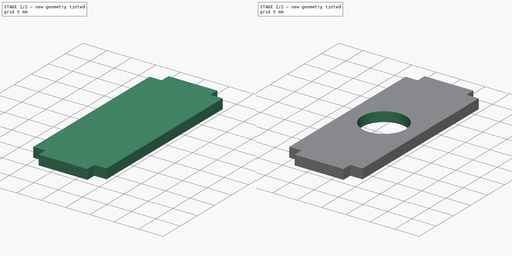
[diagram: build sequence overview — one tinted view per stage of 2, left to right]
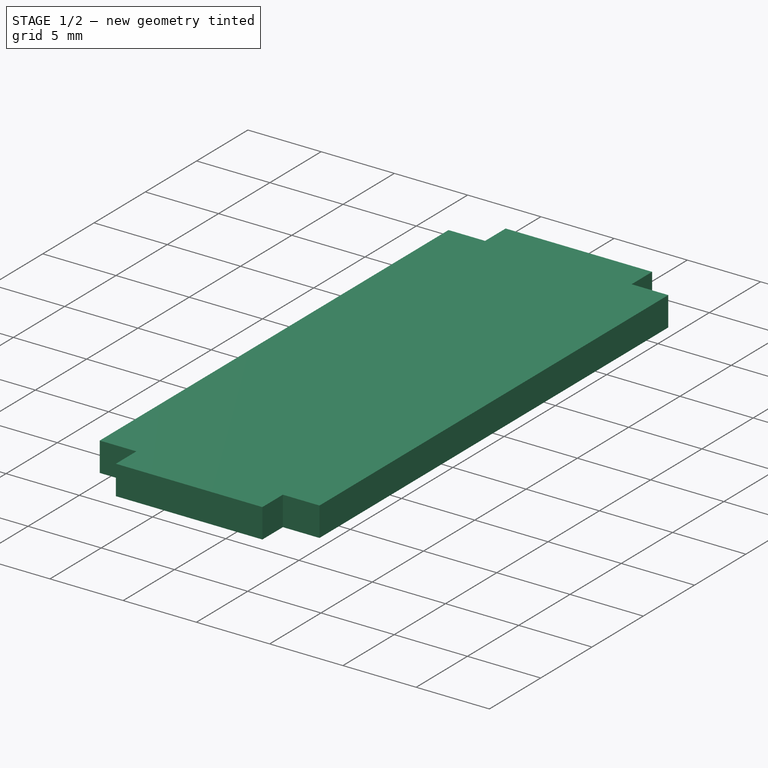
[diagram: stage 1 of 2 — iso view after this stage's code; geometry added in this stage tinted green]
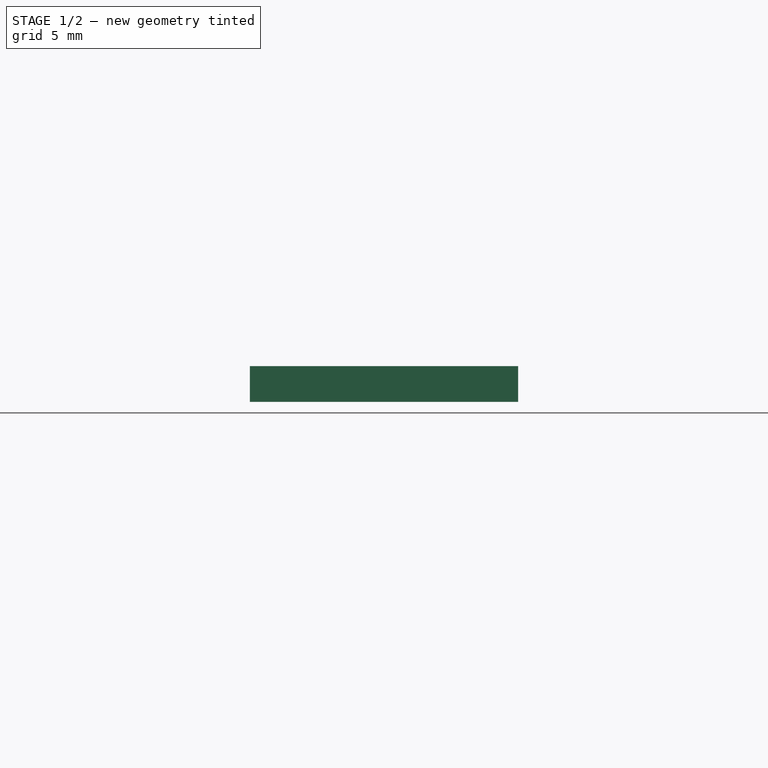
[diagram: stage 1 of 2 — front view after this stage's code; geometry added in this stage tinted green]
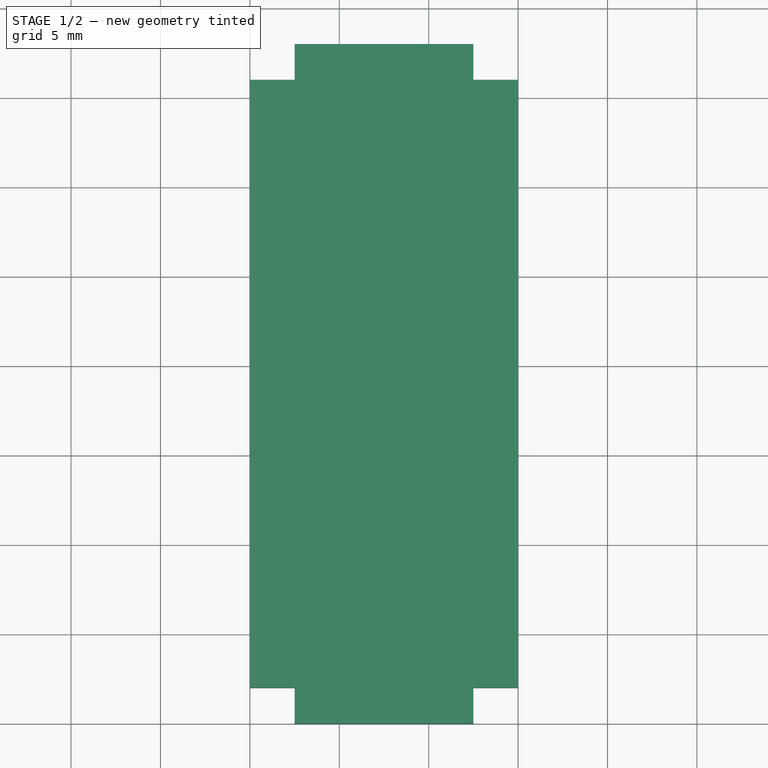
[diagram: stage 1 of 2 — top view after this stage's code; geometry added in this stage tinted green]
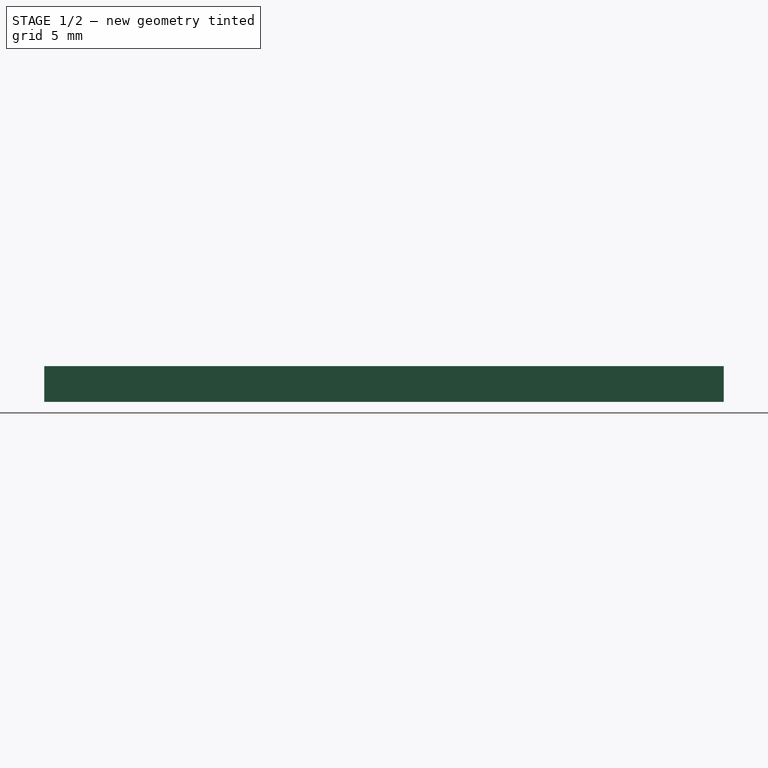
[diagram: stage 1 of 2 — right view after this stage's code; geometry added in this stage tinted green]
FCSTD DOCUMENT  (FreeCAD 0.18R16131 (Git))
Label: fem_renfort
License: All rights reserved
LicenseURL: http://en.wikipedia.org/wiki/All_rights_reserved
objects: Sketcher::SketchObject×2, PartDesign::Pad×1, PartDesign::Pocket×1, PartDesign::Body×1
note: 7 computed .brp shape members not serialized (recipe doc carries the construction recipe); baked Part::Feature solids carry a one-line shape summary decoded from their .brp

FEATURE [Sketcher::SketchObject] Sketch
  MapMode = 5
  Support = -> [XY_Plane]
  sketch-geometry (12):
    g0: LineSegment StartX=-7.357e-13 StartY=2 StartZ=0 EndX=7.357e-13 EndY=36 EndZ=0
    g1: LineSegment StartX=7.357e-13 StartY=36 StartZ=0 EndX=2.5 EndY=36 EndZ=0
    g2: LineSegment StartX=2.5 StartY=36 StartZ=0 EndX=2.5 EndY=38 EndZ=0
    g3: LineSegment StartX=2.5 StartY=38 StartZ=0 EndX=12.5 EndY=38 EndZ=0
    g4: LineSegment StartX=12.5 StartY=38 StartZ=0 EndX=12.5 EndY=36 EndZ=0
    g5: LineSegment StartX=12.5 StartY=36 StartZ=0 EndX=15 EndY=36 EndZ=0
    g6: LineSegment StartX=15 StartY=36 StartZ=0 EndX=15 EndY=2 EndZ=0
    g7: LineSegment StartX=15 StartY=2 StartZ=0 EndX=12.5 EndY=2 EndZ=0
    g8: LineSegment StartX=12.5 StartY=2 StartZ=0 EndX=12.5 EndY=0 EndZ=0
    g9: LineSegment StartX=12.5 StartY=0 StartZ=0 EndX=2.5 EndY=0 EndZ=0
    g10: LineSegment StartX=2.5 StartY=0 StartZ=0 EndX=2.5 EndY=2 EndZ=0
    g11: LineSegment StartX=2.5 StartY=2 StartZ=0 EndX=-7.359e-13 EndY=2 EndZ=0
  constraints (34):
    c: Coincident(g0,g1)
    c: Coincident(g1,g2)
    c: Coincident(g2,g3)
    c: Coincident(g3,g4)
    c: Coincident(g4,g5)
    c: Coincident(g5,g6)
    c: Coincident(g6,g7)
    c: Coincident(g7,g8)
    c: Coincident(g8,g9)
    c: Coincident(g9,g10)
    c: Coincident(g10,g11)
    c: Coincident(g11,g0)
    c: Vertical(g2)
    c: Vertical(g4)
    c: Vertical(g6)
    c: Vertical(g8)
    c: Vertical(g10)
    c: Horizontal(g3)
    c: Horizontal(g1)
    c: Horizontal(g5)
    c: Horizontal(g11)
    c: Horizontal(g7)
    c: Tangent(g9,g-1)
    c: Tangent(g0,g-2)
    c: DistanceY(g2,g2) = 2
    c: DistanceX(g3,g3) = 10
    c: DistanceY(g0,g0) = 34
    c: DistanceX(g0,g5) = 15
    c: Equal(g9,g3)
    c: Equal(g4,g2)
    c: Equal(g2,g10)
    c: Equal(g10,g8)
    c: DistanceX(g0,g1) = 2.5
    c: Equal(g11,g1)
FEATURE [PartDesign::Pad] Pad
  Length = 2
  Length2 = 100
  Profile = -> Sketch
  Type = 0
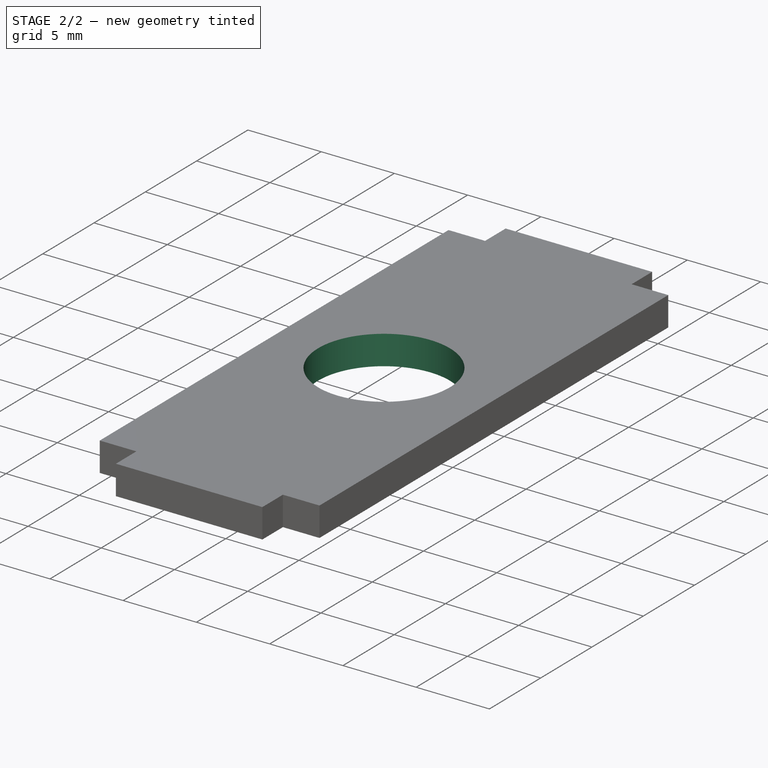
[diagram: stage 2 of 2 — iso view after this stage's code; geometry added in this stage tinted green]
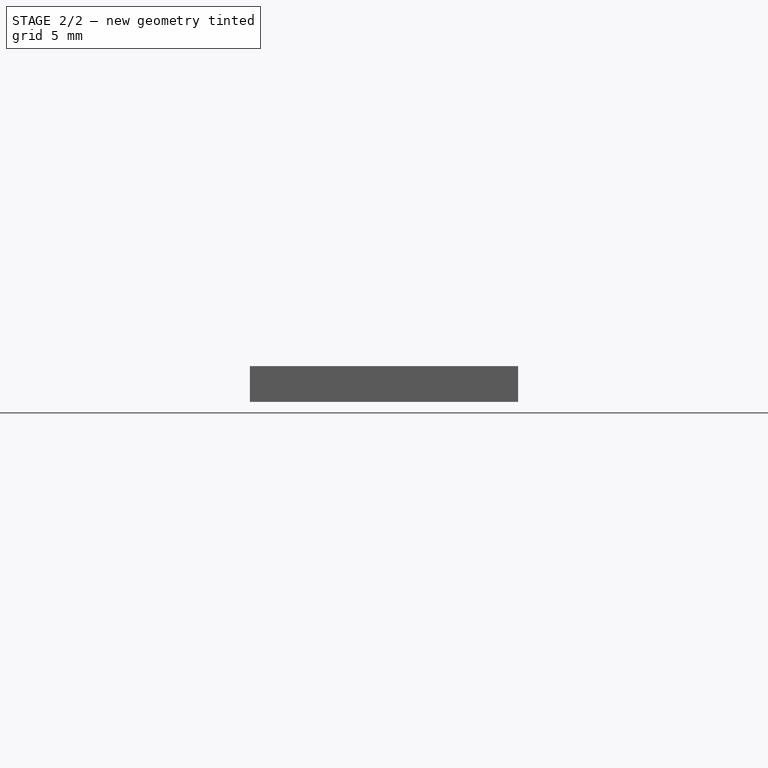
[diagram: stage 2 of 2 — front view after this stage's code; geometry added in this stage tinted green]
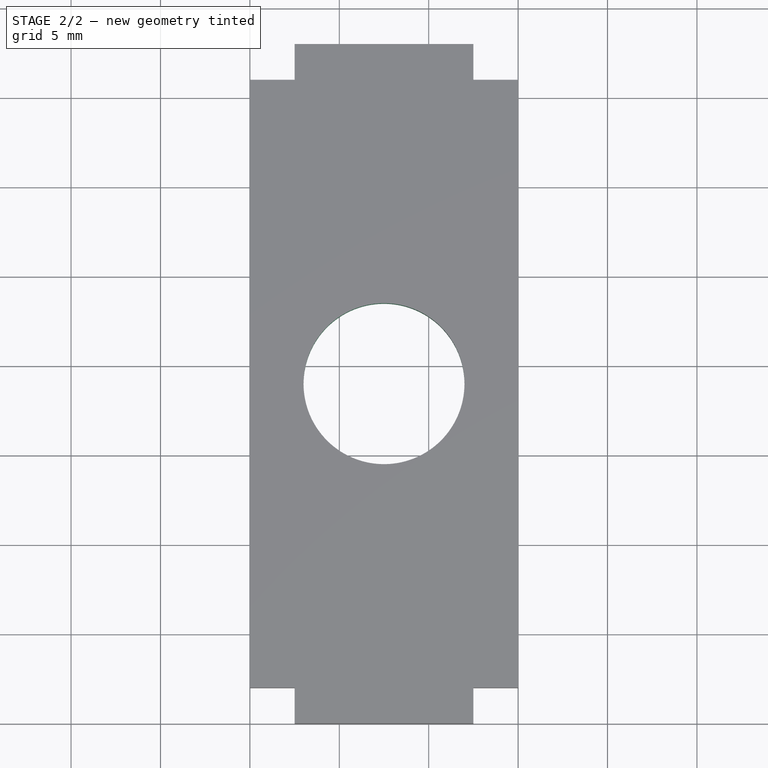
[diagram: stage 2 of 2 — top view after this stage's code; geometry added in this stage tinted green]
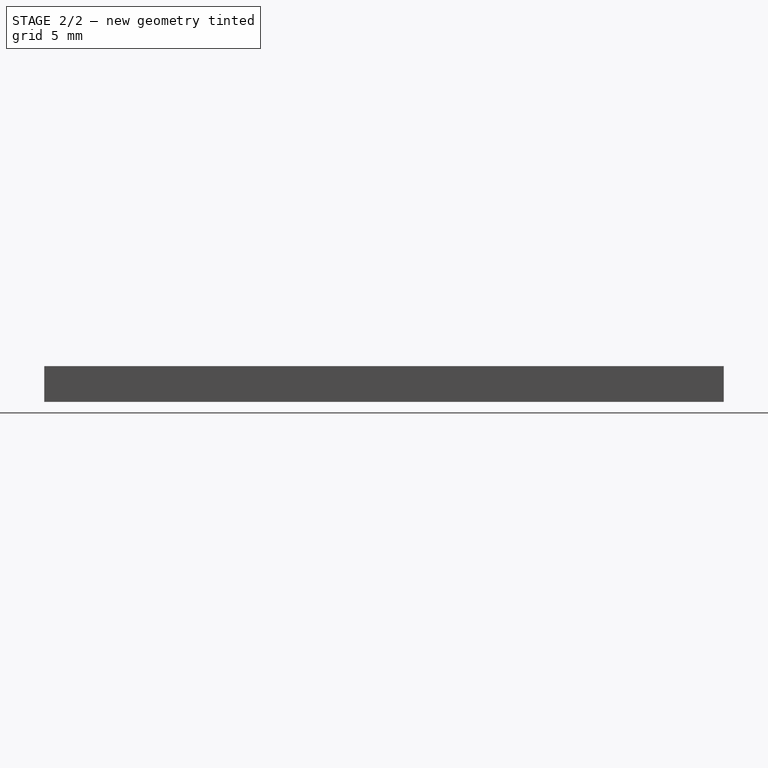
[diagram: stage 2 of 2 — right view after this stage's code; geometry added in this stage tinted green]
FEATURE [Sketcher::SketchObject] Sketch001
  MapMode = 5
  Support = -> [XY_Plane]
  sketch-geometry (1):
    g0: Circle CenterX=7.5 CenterY=19 CenterZ=0 NormalX=0 NormalY=0 NormalZ=1 AngleXU=0 Radius=4.5
  constraints (3):
    c: Radius(g0) = 4.5
    c: DistanceX(g-1,g0) = 7.5
    c: DistanceY(g-1,g0) = 19
FEATURE [PartDesign::Pocket] Pocket
  BaseFeature = -> Pad
  Length = 5
  Length2 = 100
  Midplane = true
  Profile = -> Sketch001
  Type = 1
FEATURE [PartDesign::Body] Body
  Group = -> [Sketch,Pad,Sketch001,Pocket]
  Origin = -> Origin
  Tip = -> Pocket
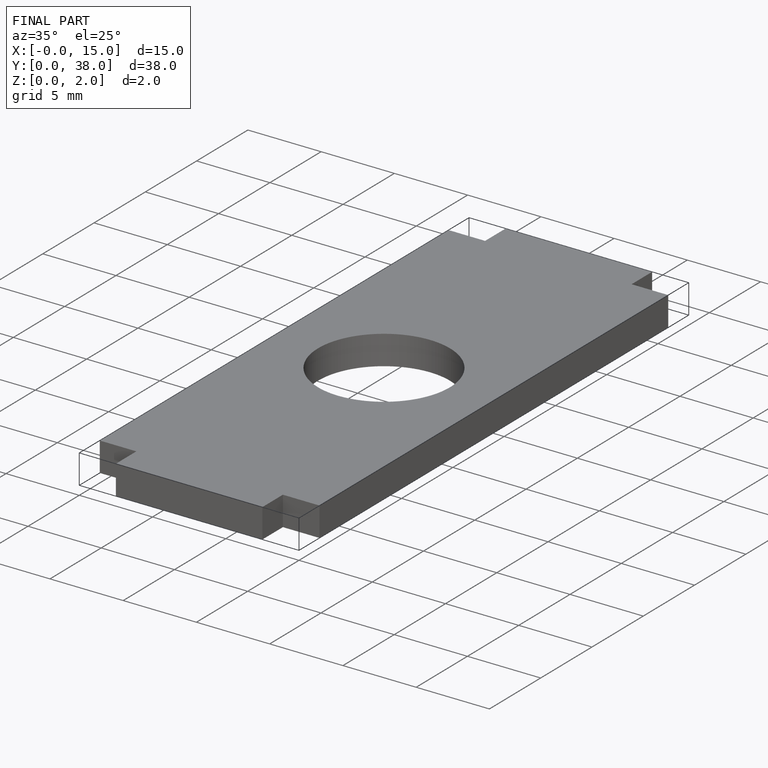
[diagram: finished part — iso view with bounding-box wireframe]
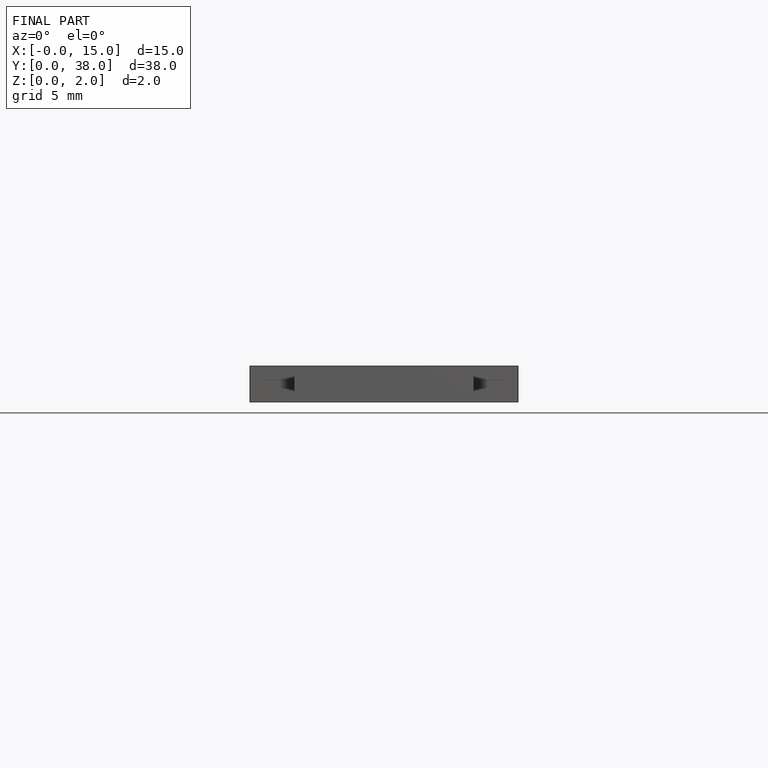
[diagram: finished part — front view with bounding-box wireframe]
